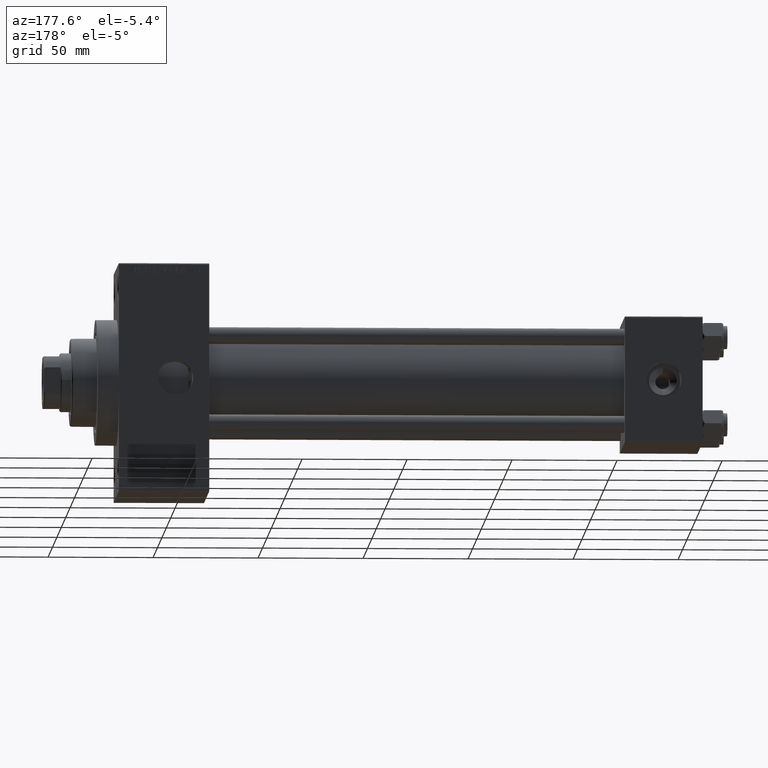
[diagram: clean part render]
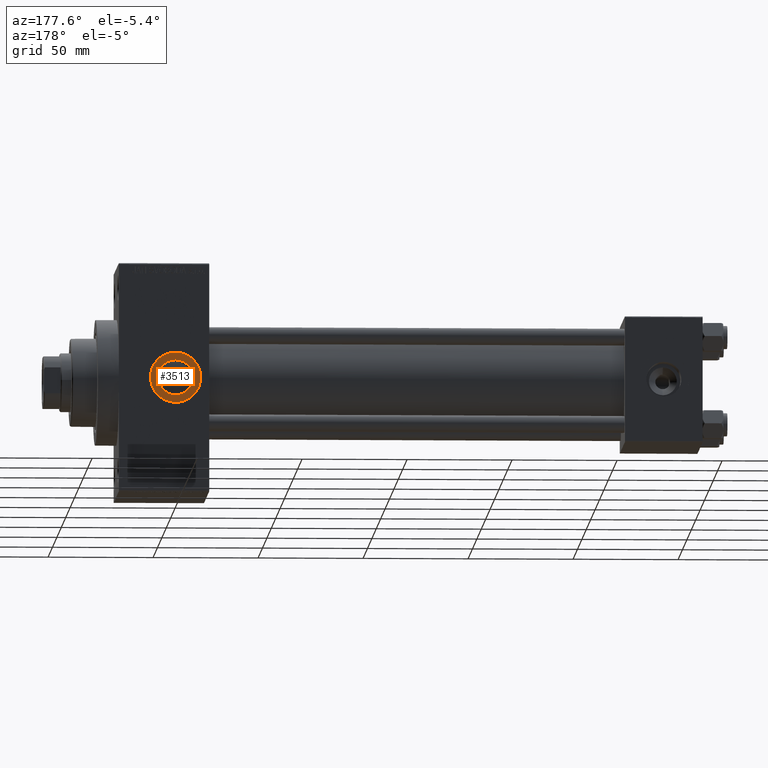
[diagram: same view with one face highlighted and labeled with its STEP entity id]
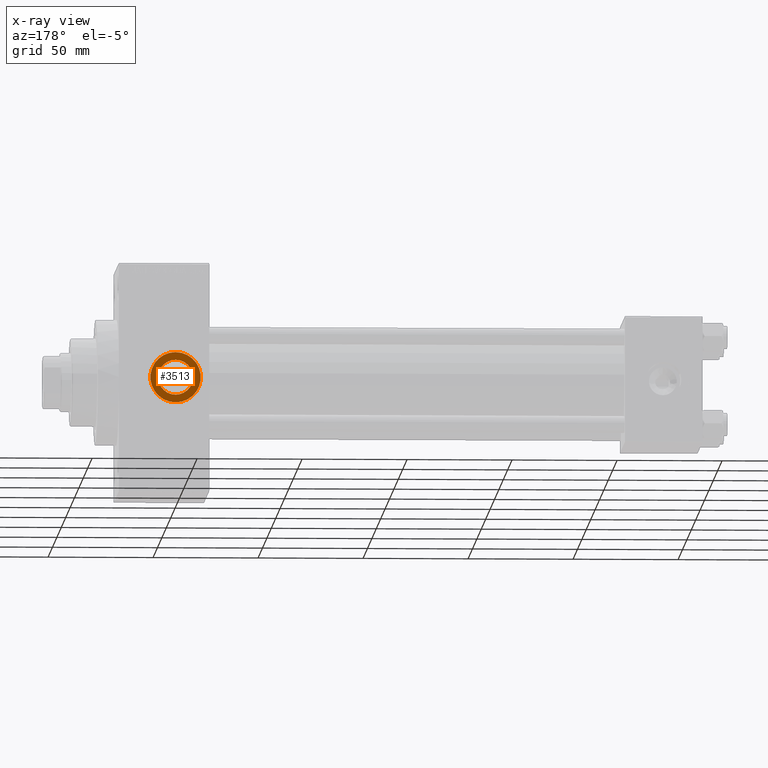
[diagram: x-ray of the same camera — body ghosted, the highlighted face saturated]
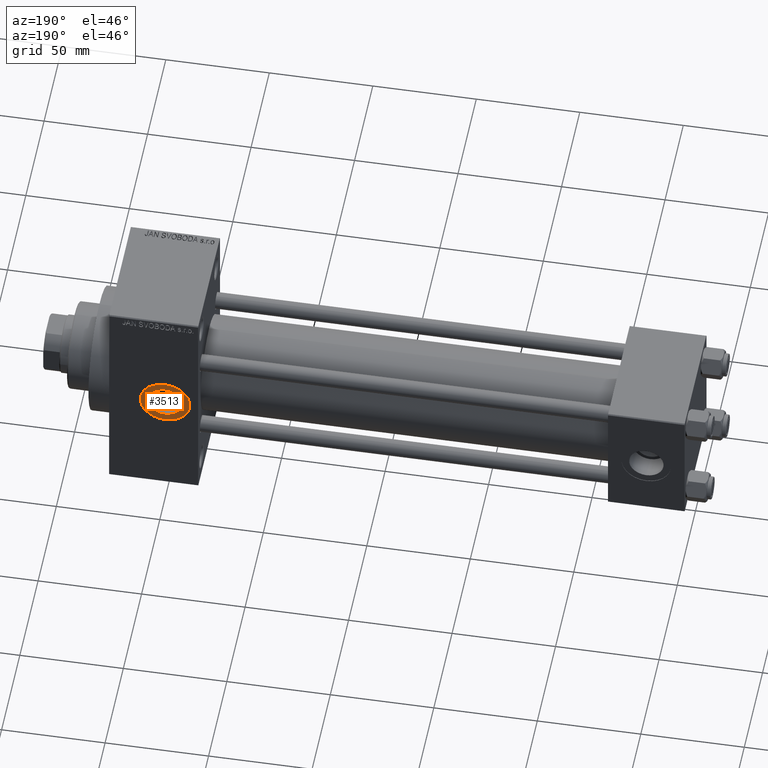
[diagram: same view with one face highlighted and labeled with its STEP entity id]
A machine part, auxiliary view. The second image highlights one B-rep face of the part: STEP entity #3513.
The next image is the same camera in x-ray: the body ghosted, the highlighted face saturated — about 0% of this face is hidden behind the body in this view.
A second angle (auxiliary view) of the same face is appended — the face is thin or edge-on in the first view.
In plain terms, the highlighted planar face has unit normal (0, 1, 0).
Its self-contained STEP definition (entity closure, byte-faithful):
#544 = CARTESIAN_POINT ( 'NONE',  ( 251.0000000000000000, 29.79999999999999716, -12.00000000000003197 ) ) ;
#676 = DIRECTION ( 'NONE',  ( 0.000000000000000000, 1.000000000000000000, 0.000000000000000000 ) ) ;
#749 = AXIS2_PLACEMENT_3D ( 'NONE', #26179, #676, #11737 ) ;
#3513 = ADVANCED_FACE ( 'NONE', ( #11507, #44207 ), #37209, .T. ) ;
#4724 = EDGE_CURVE ( 'NONE', #45969, #25470, #46004, .T. ) ;
#5135 = CARTESIAN_POINT ( 'NONE',  ( 251.0000000000000000, 29.79999999999999716, 0.000000000000000000 ) ) ;
#5164 = ORIENTED_EDGE ( 'NONE', *, *, #5667, .T. ) ;
#5667 = EDGE_CURVE ( 'NONE', #25470, #45969, #26043, .T. ) ;
#6168 = CIRCLE ( 'NONE', #10028, 8.330000000000026716 ) ;
#7457 = DIRECTION ( 'NONE',  ( 0.000000000000000000, 0.000000000000000000, 1.000000000000000000 ) ) ;
#10028 = AXIS2_PLACEMENT_3D ( 'NONE', #22225, #39531, #21763 ) ;
#10789 = EDGE_CURVE ( 'NONE', #42051, #24982, #6168, .T. ) ;
#11507 = FACE_BOUND ( 'NONE', #37854, .T. ) ;
#11737 = DIRECTION ( 'NONE',  ( 0.000000000000000000, -0.000000000000000000, 1.000000000000000000 ) ) ;
#12261 = ORIENTED_EDGE ( 'NONE', *, *, #17017, .F. ) ;
#13168 = EDGE_LOOP ( 'NONE', ( #5164, #46907 ) ) ;
#17017 = EDGE_CURVE ( 'NONE', #24982, #42051, #26314, .T. ) ;
#18843 = DIRECTION ( 'NONE',  ( 0.000000000000000000, 1.000000000000000000, 0.000000000000000000 ) ) ;
#20491 = CARTESIAN_POINT ( 'NONE',  ( 251.0000000000000000, 29.79999999999999716, 12.00000000000003197 ) ) ;
#21763 = DIRECTION ( 'NONE',  ( 0.000000000000000000, 0.000000000000000000, 1.000000000000000000 ) ) ;
#22225 = CARTESIAN_POINT ( 'NONE',  ( 251.0000000000000000, 29.79999999999999716, 0.000000000000000000 ) ) ;
#22437 = ORIENTED_EDGE ( 'NONE', *, *, #10789, .F. ) ;
#24982 = VERTEX_POINT ( 'NONE', #28349 ) ;
#25470 = VERTEX_POINT ( 'NONE', #20491 ) ;
#25966 = DIRECTION ( 'NONE',  ( 0.000000000000000000, 1.000000000000000000, 0.000000000000000000 ) ) ;
#26043 = CIRCLE ( 'NONE', #32174, 12.00000000000003197 ) ;
#26179 = CARTESIAN_POINT ( 'NONE',  ( 251.0000000000000000, 29.79999999999999716, 0.000000000000000000 ) ) ;
#26202 = CARTESIAN_POINT ( 'NONE',  ( 251.0000000000000000, 29.79999999999999716, 0.000000000000000000 ) ) ;
#26312 = DIRECTION ( 'NONE',  ( 0.000000000000000000, 0.000000000000000000, 1.000000000000000000 ) ) ;
#26314 = CIRCLE ( 'NONE', #36303, 8.330000000000026716 ) ;
#28349 = CARTESIAN_POINT ( 'NONE',  ( 251.0000000000000000, 29.79999999999999716, -8.330000000000026716 ) ) ;
#28987 = CARTESIAN_POINT ( 'NONE',  ( 251.0000000000000000, 29.79999999999999716, 8.330000000000026716 ) ) ;
#29676 = CARTESIAN_POINT ( 'NONE',  ( 251.0000000000000000, 29.79999999999999716, 0.000000000000000000 ) ) ;
#32174 = AXIS2_PLACEMENT_3D ( 'NONE', #5135, #37113, #26312 ) ;
#36303 = AXIS2_PLACEMENT_3D ( 'NONE', #26202, #25966, #7457 ) ;
#37113 = DIRECTION ( 'NONE',  ( 0.000000000000000000, 1.000000000000000000, 0.000000000000000000 ) ) ;
#37209 = PLANE ( 'NONE',  #749 ) ;
#37854 = EDGE_LOOP ( 'NONE', ( #22437, #12261 ) ) ;
#39531 = DIRECTION ( 'NONE',  ( 0.000000000000000000, 1.000000000000000000, 0.000000000000000000 ) ) ;
#42051 = VERTEX_POINT ( 'NONE', #28987 ) ;
#42960 = AXIS2_PLACEMENT_3D ( 'NONE', #29676, #18843, #45033 ) ;
#44207 = FACE_OUTER_BOUND ( 'NONE', #13168, .T. ) ;
#45033 = DIRECTION ( 'NONE',  ( 0.000000000000000000, 0.000000000000000000, 1.000000000000000000 ) ) ;
#45969 = VERTEX_POINT ( 'NONE', #544 ) ;
#46004 = CIRCLE ( 'NONE', #42960, 12.00000000000003197 ) ;
#46907 = ORIENTED_EDGE ( 'NONE', *, *, #4724, .T. ) ;